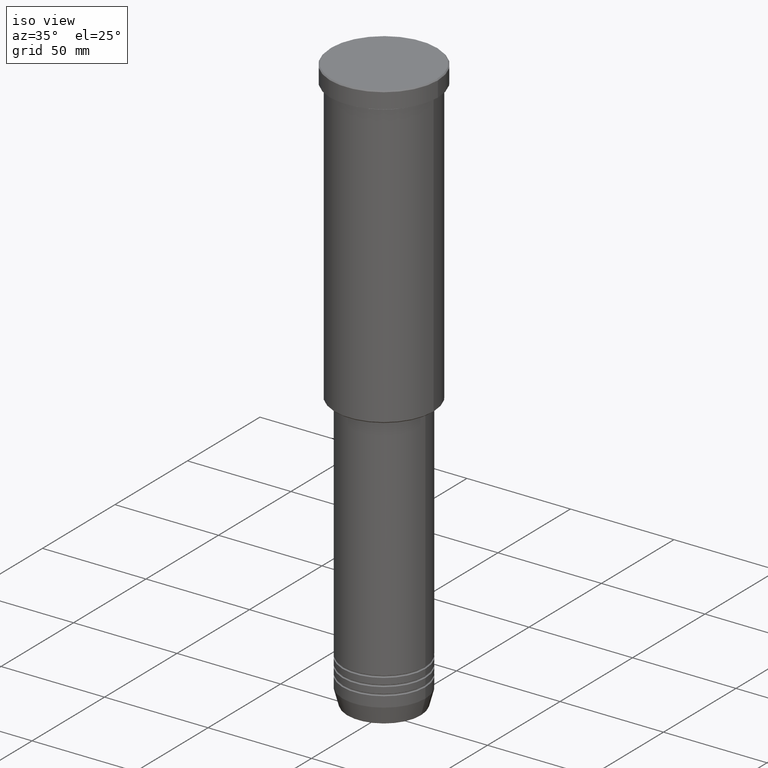
[diagram: clean part render]
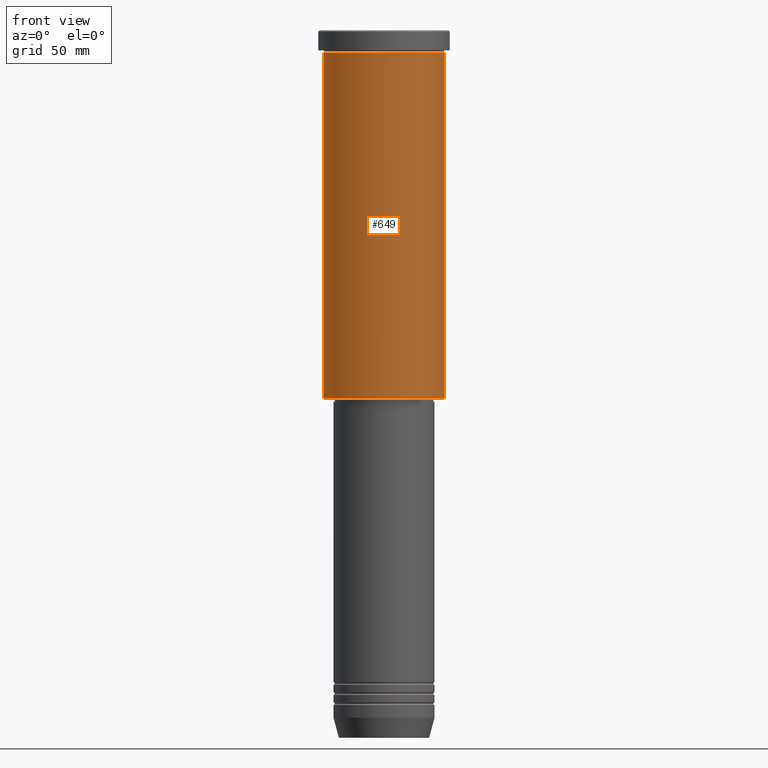
[diagram: tour spotlight — one face highlighted and labeled with its STEP entity id]
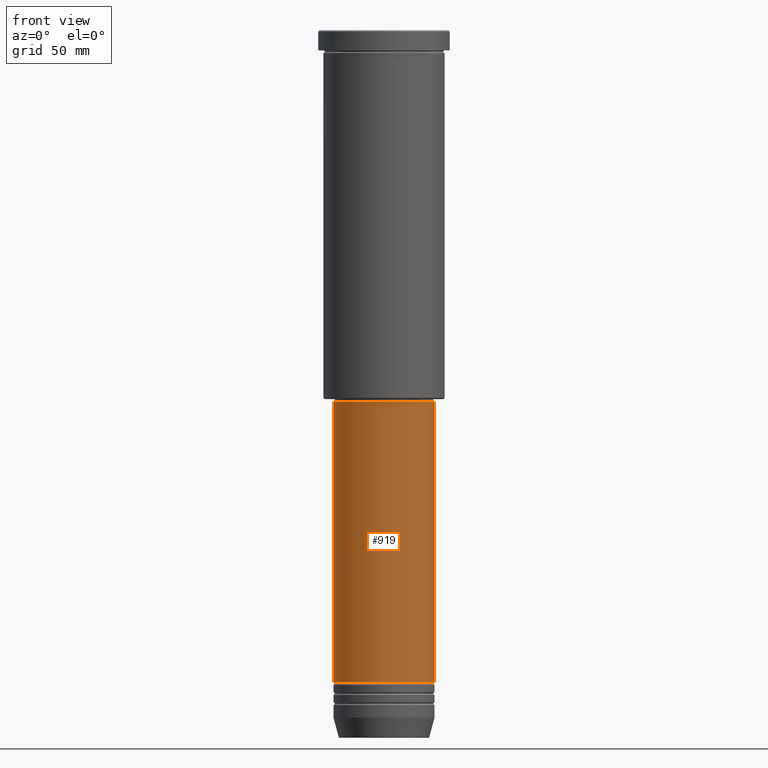
[diagram: tour spotlight — one face highlighted and labeled with its STEP entity id]
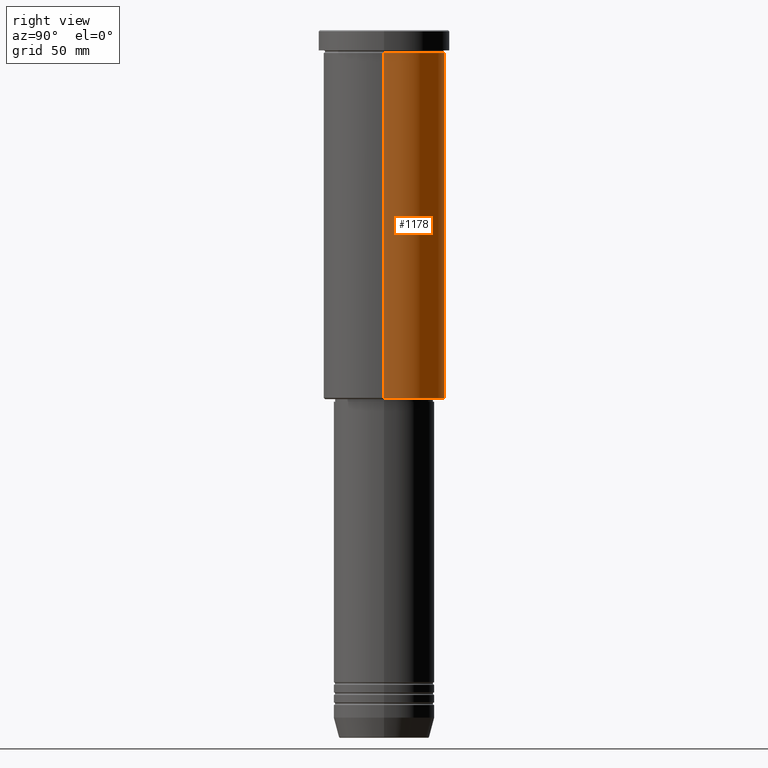
[diagram: tour spotlight — one face highlighted and labeled with its STEP entity id]
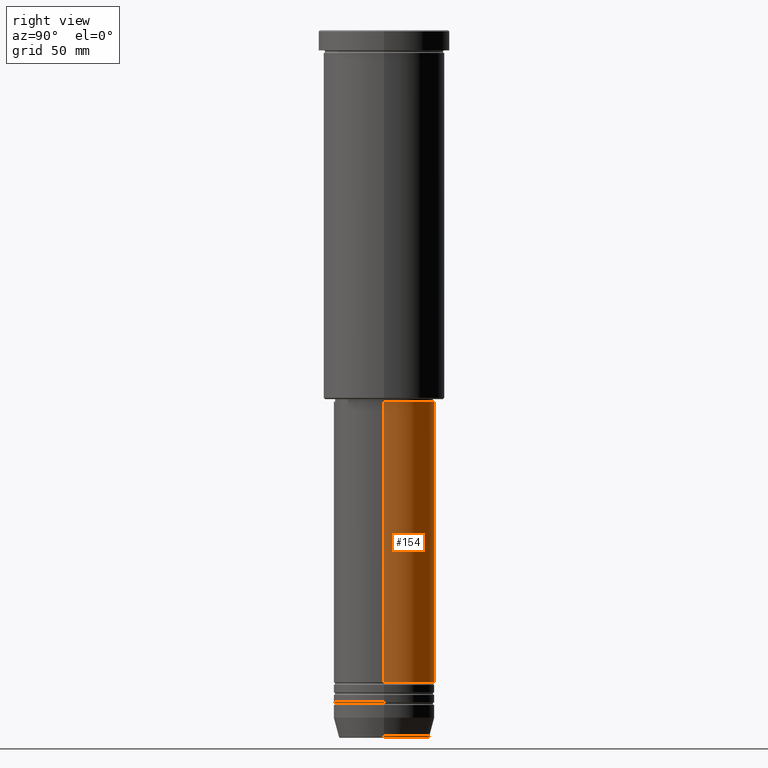
[diagram: tour spotlight — one face highlighted and labeled with its STEP entity id]
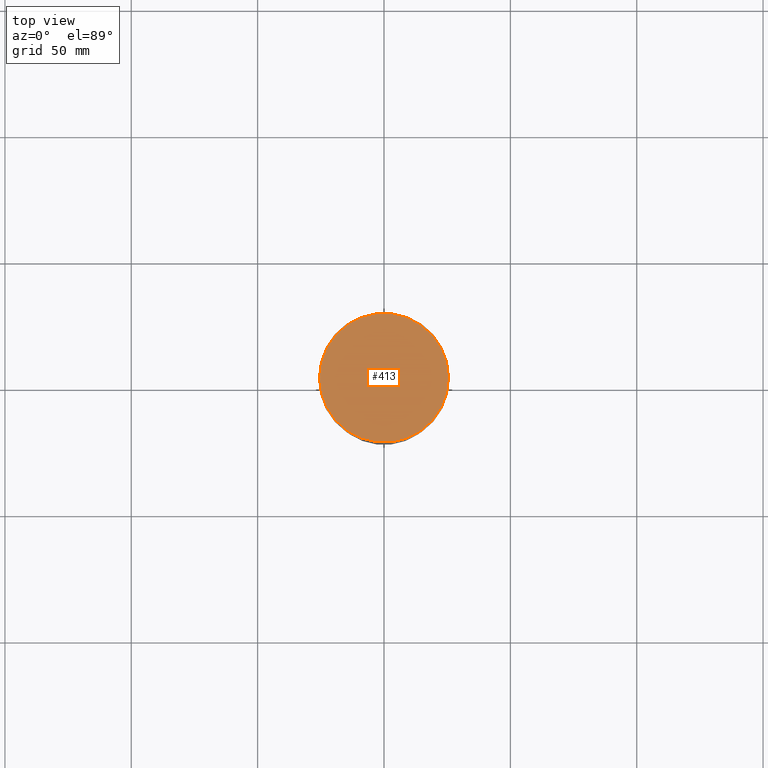
[diagram: tour spotlight — one face highlighted and labeled with its STEP entity id]
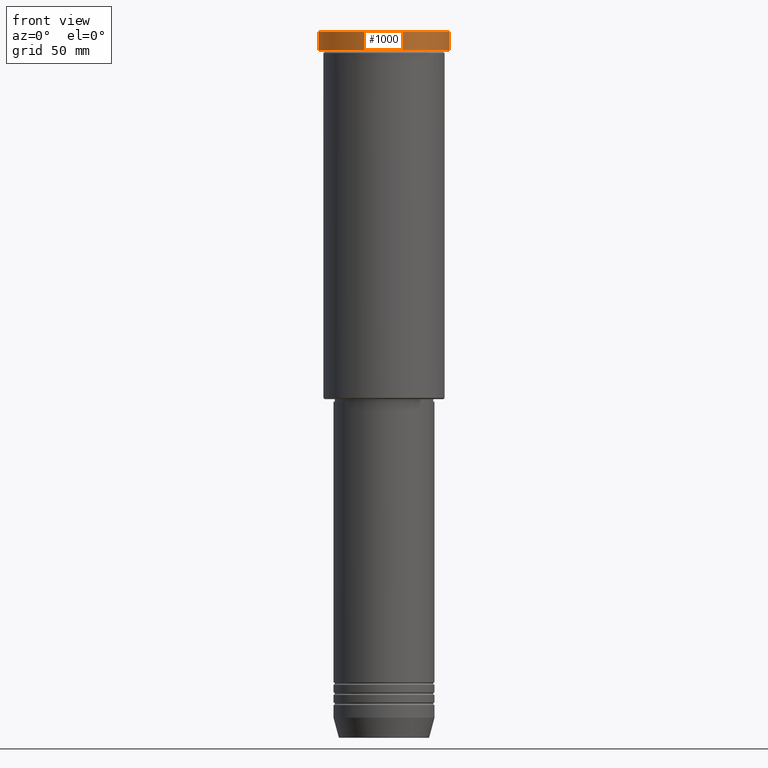
[diagram: tour spotlight — one face highlighted and labeled with its STEP entity id]
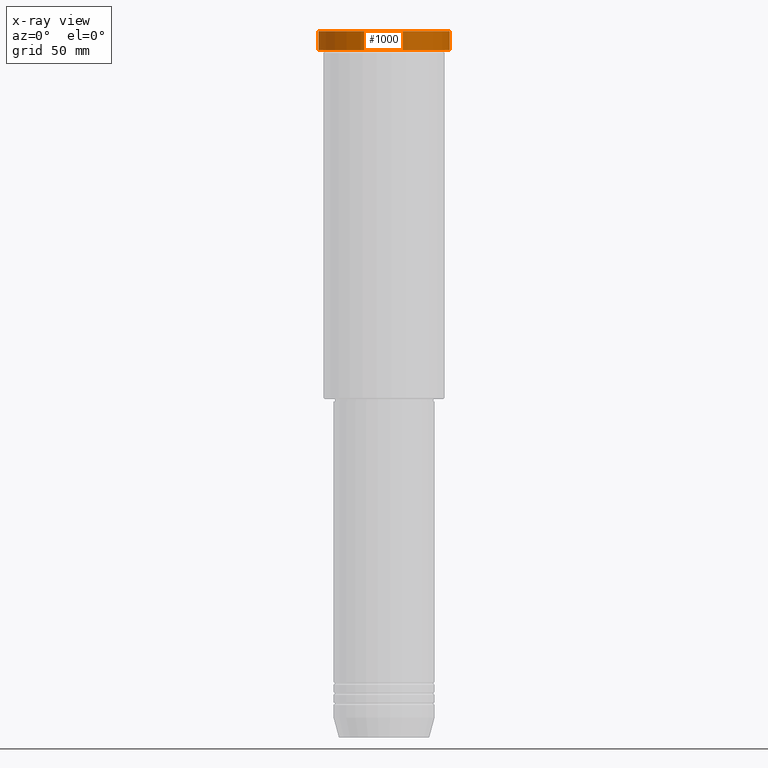
[diagram: x-ray of the same camera — body ghosted, this tour face saturated]
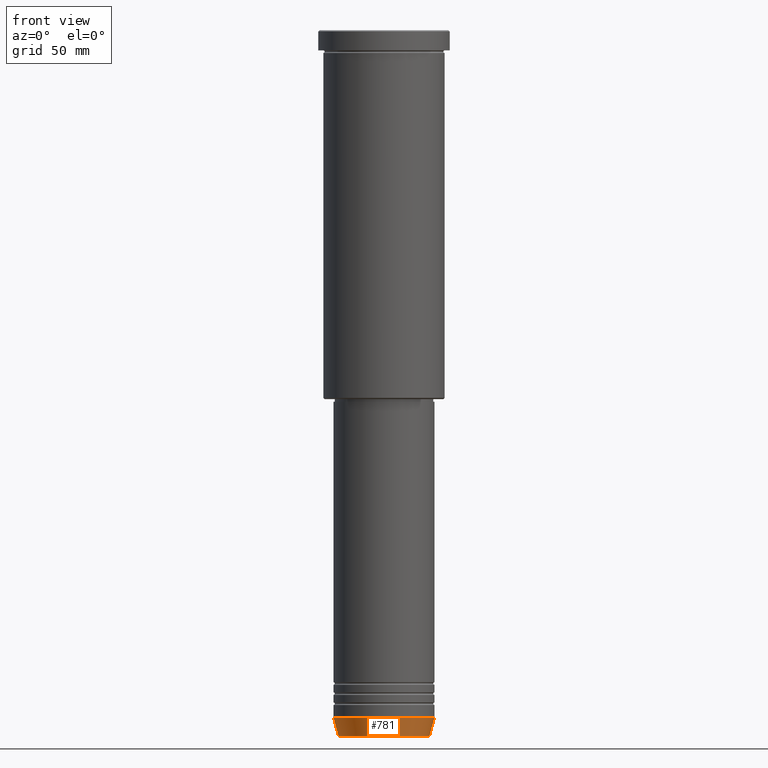
[diagram: tour spotlight — one face highlighted and labeled with its STEP entity id]
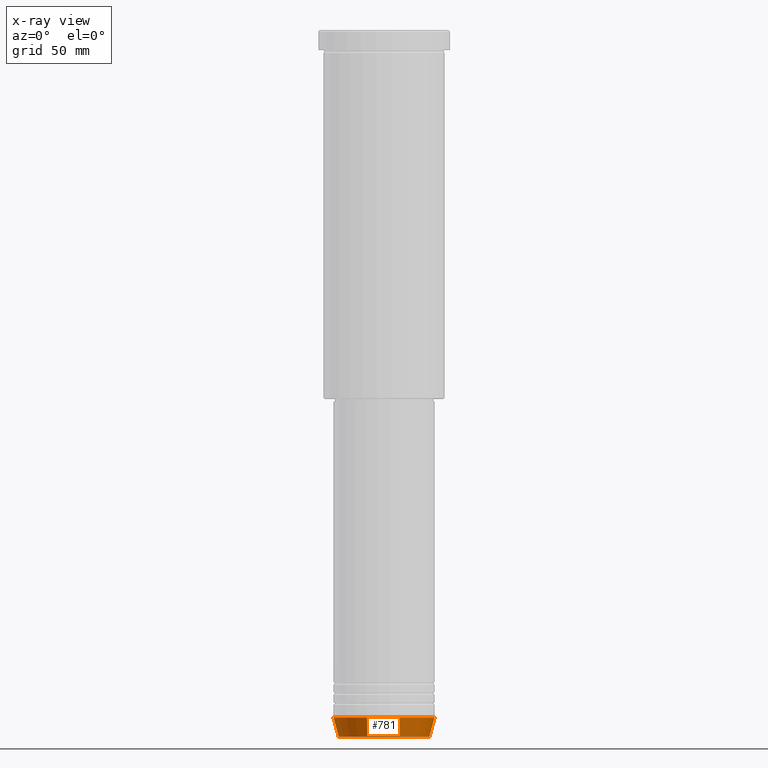
[diagram: x-ray of the same camera — body ghosted, this tour face saturated]
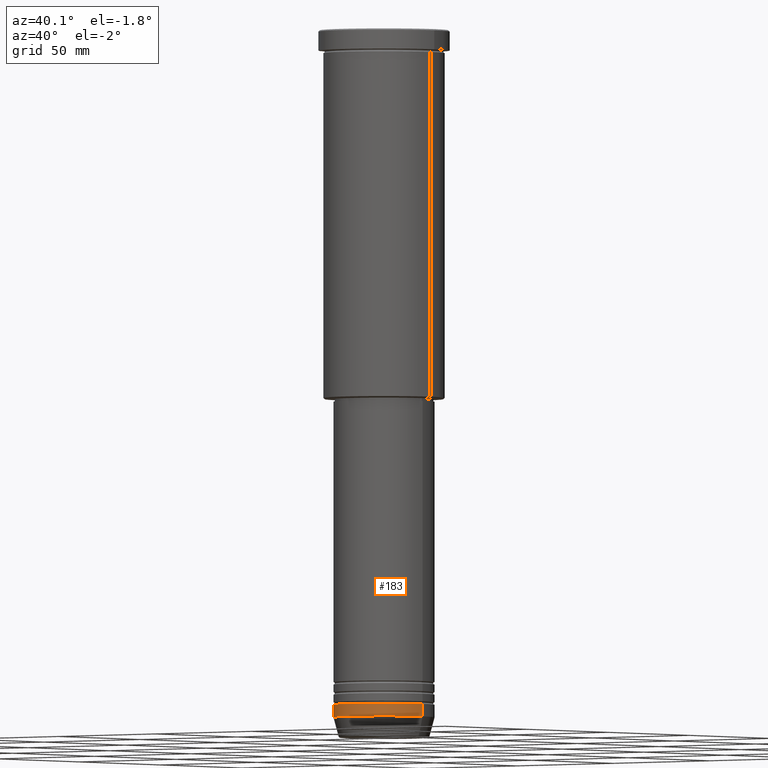
[diagram: tour spotlight — one face highlighted and labeled with its STEP entity id]
A machine part: a face-by-face anatomy tour. The part has 43 B-rep faces; the first image is the clean iso view, then the 8 largest visible faces are spotlighted one at a time (largest first), each with its STEP entity span.

Face 1 — front view, entity #649. In plain terms, the highlighted cylindrical surface (partial cylindrical patch) has radius 24 mm, axis along (-0, -0, 1).
Definition (entity closure, byte-faithful):
#77 = CARTESIAN_POINT ( 'NONE',  ( 0.000000000000000000, 0.000000000000000000, 0.000000000000000000 ) ) ;
#90 = FACE_OUTER_BOUND ( 'NONE', #387, .T. ) ;
#92 = AXIS2_PLACEMENT_3D ( 'NONE', #77, #926, #733 ) ;
#131 = AXIS2_PLACEMENT_3D ( 'NONE', #218, #597, #789 ) ;
#174 = AXIS2_PLACEMENT_3D ( 'NONE', #814, #360, #547 ) ;
#178 = CARTESIAN_POINT ( 'NONE',  ( -24.00000000000000000, 2.939152317953647894E-15, -145.4999999999999716 ) ) ;
#207 = EDGE_CURVE ( 'NONE', #635, #939, #1119, .T. ) ;
#218 = CARTESIAN_POINT ( 'NONE',  ( 0.000000000000000000, 0.000000000000000000, -145.4999999999999716 ) ) ;
#253 = CARTESIAN_POINT ( 'NONE',  ( 24.00000000000000000, 0.000000000000000000, -8.999999999999994671 ) ) ;
#296 = ORIENTED_EDGE ( 'NONE', *, *, #582, .F. ) ;
#312 = VERTEX_POINT ( 'NONE', #253 ) ;
#352 = ORIENTED_EDGE ( 'NONE', *, *, #625, .T. ) ;
#360 = DIRECTION ( 'NONE',  ( -0.000000000000000000, -0.000000000000000000, 1.000000000000000000 ) ) ;
#387 = EDGE_LOOP ( 'NONE', ( #1071, #1086, #352, #296 ) ) ;
#411 = CIRCLE ( 'NONE', #174, 24.00000000000000000 ) ;
#547 = DIRECTION ( 'NONE',  ( 1.000000000000000000, 0.000000000000000000, 0.000000000000000000 ) ) ;
#560 = CYLINDRICAL_SURFACE ( 'NONE', #92, 24.00000000000000000 ) ;
#582 = EDGE_CURVE ( 'NONE', #939, #312, #411, .T. ) ;
#597 = DIRECTION ( 'NONE',  ( -0.000000000000000000, -0.000000000000000000, 1.000000000000000000 ) ) ;
#625 = EDGE_CURVE ( 'NONE', #634, #312, #728, .T. ) ;
#634 = VERTEX_POINT ( 'NONE', #835 ) ;
#635 = VERTEX_POINT ( 'NONE', #178 ) ;
#649 = ADVANCED_FACE ( 'NONE', ( #90 ), #560, .T. ) ;
#728 = LINE ( 'NONE', #1004, #1049 ) ;
#733 = DIRECTION ( 'NONE',  ( 1.000000000000000000, 0.000000000000000000, 0.000000000000000000 ) ) ;
#789 = DIRECTION ( 'NONE',  ( -1.000000000000000000, 0.000000000000000000, 0.000000000000000000 ) ) ;
#814 = CARTESIAN_POINT ( 'NONE',  ( 0.000000000000000000, 0.000000000000000000, -8.999999999999994671 ) ) ;
#835 = CARTESIAN_POINT ( 'NONE',  ( 24.00000000000000000, 0.000000000000000000, -145.4999999999999716 ) ) ;
#863 = DIRECTION ( 'NONE',  ( -0.000000000000000000, -0.000000000000000000, 1.000000000000000000 ) ) ;
#926 = DIRECTION ( 'NONE',  ( -0.000000000000000000, -0.000000000000000000, 1.000000000000000000 ) ) ;
#939 = VERTEX_POINT ( 'NONE', #981 ) ;
#950 = CARTESIAN_POINT ( 'NONE',  ( -24.00000000000000000, 2.939152317953647894E-15, 0.000000000000000000 ) ) ;
#973 = EDGE_CURVE ( 'NONE', #635, #634, #1087, .T. ) ;
#981 = CARTESIAN_POINT ( 'NONE',  ( -24.00000000000000000, 2.939152317953647894E-15, -8.999999999999994671 ) ) ;
#1004 = CARTESIAN_POINT ( 'NONE',  ( 24.00000000000000000, 0.000000000000000000, 0.000000000000000000 ) ) ;
#1049 = VECTOR ( 'NONE', #1107, 1000.000000000000000 ) ;
#1071 = ORIENTED_EDGE ( 'NONE', *, *, #207, .F. ) ;
#1086 = ORIENTED_EDGE ( 'NONE', *, *, #973, .T. ) ;
#1087 = CIRCLE ( 'NONE', #131, 24.00000000000000000 ) ;
#1107 = DIRECTION ( 'NONE',  ( -0.000000000000000000, -0.000000000000000000, 1.000000000000000000 ) ) ;
#1119 = LINE ( 'NONE', #950, #1154 ) ;
#1154 = VECTOR ( 'NONE', #863, 1000.000000000000000 ) ;

Face 2 — front view, entity #919. In plain terms, the highlighted cylindrical surface (partial cylindrical patch) has radius 20 mm, axis along (-0, -0, 1).
Definition (entity closure, byte-faithful):
#16 = VERTEX_POINT ( 'NONE', #624 ) ;
#36 = AXIS2_PLACEMENT_3D ( 'NONE', #583, #406, #309 ) ;
#99 = DIRECTION ( 'NONE',  ( -0.000000000000000000, -0.000000000000000000, 1.000000000000000000 ) ) ;
#145 = EDGE_CURVE ( 'NONE', #510, #16, #1103, .T. ) ;
#151 = CIRCLE ( 'NONE', #575, 20.00000000000000355 ) ;
#234 = CARTESIAN_POINT ( 'NONE',  ( -20.00000000000000355, 2.449293598294706907E-15, -258.0000000000000000 ) ) ;
#243 = CARTESIAN_POINT ( 'NONE',  ( 20.00000000000000355, 0.000000000000000000, -258.0000000000000000 ) ) ;
#255 = ORIENTED_EDGE ( 'NONE', *, *, #145, .T. ) ;
#258 = DIRECTION ( 'NONE',  ( -0.000000000000000000, -0.000000000000000000, 1.000000000000000000 ) ) ;
#294 = ORIENTED_EDGE ( 'NONE', *, *, #767, .T. ) ;
#309 = DIRECTION ( 'NONE',  ( 1.000000000000000000, 0.000000000000000000, 0.000000000000000000 ) ) ;
#337 = CARTESIAN_POINT ( 'NONE',  ( 0.000000000000000000, 0.000000000000000000, 0.000000000000000000 ) ) ;
#406 = DIRECTION ( 'NONE',  ( -0.000000000000000000, -0.000000000000000000, 1.000000000000000000 ) ) ;
#438 = FACE_OUTER_BOUND ( 'NONE', #521, .T. ) ;
#490 = DIRECTION ( 'NONE',  ( -0.000000000000000000, -0.000000000000000000, 1.000000000000000000 ) ) ;
#510 = VERTEX_POINT ( 'NONE', #243 ) ;
#511 = DIRECTION ( 'NONE',  ( -0.000000000000000000, -0.000000000000000000, 1.000000000000000000 ) ) ;
#521 = EDGE_LOOP ( 'NONE', ( #690, #294, #255, #606 ) ) ;
#552 = EDGE_CURVE ( 'NONE', #947, #620, #1075, .T. ) ;
#564 = VECTOR ( 'NONE', #258, 1000.000000000000000 ) ;
#573 = EDGE_CURVE ( 'NONE', #620, #16, #151, .T. ) ;
#575 = AXIS2_PLACEMENT_3D ( 'NONE', #1091, #99, #920 ) ;
#583 = CARTESIAN_POINT ( 'NONE',  ( 0.000000000000000000, 0.000000000000000000, -258.0000000000000000 ) ) ;
#584 = AXIS2_PLACEMENT_3D ( 'NONE', #337, #511, #962 ) ;
#600 = CARTESIAN_POINT ( 'NONE',  ( -20.00000000000000355, 2.449293598294706907E-15, 0.000000000000000000 ) ) ;
#606 = ORIENTED_EDGE ( 'NONE', *, *, #573, .F. ) ;
#620 = VERTEX_POINT ( 'NONE', #739 ) ;
#624 = CARTESIAN_POINT ( 'NONE',  ( 20.00000000000000355, 0.000000000000000000, -147.0000000000000000 ) ) ;
#690 = ORIENTED_EDGE ( 'NONE', *, *, #552, .F. ) ;
#739 = CARTESIAN_POINT ( 'NONE',  ( -20.00000000000000355, 2.449293598294706907E-15, -147.0000000000000000 ) ) ;
#767 = EDGE_CURVE ( 'NONE', #947, #510, #897, .T. ) ;
#886 = CYLINDRICAL_SURFACE ( 'NONE', #584, 20.00000000000000355 ) ;
#897 = CIRCLE ( 'NONE', #36, 20.00000000000000355 ) ;
#919 = ADVANCED_FACE ( 'NONE', ( #438 ), #886, .T. ) ;
#920 = DIRECTION ( 'NONE',  ( 1.000000000000000000, 0.000000000000000000, 0.000000000000000000 ) ) ;
#947 = VERTEX_POINT ( 'NONE', #234 ) ;
#962 = DIRECTION ( 'NONE',  ( 1.000000000000000000, 0.000000000000000000, 0.000000000000000000 ) ) ;
#1005 = CARTESIAN_POINT ( 'NONE',  ( 20.00000000000000355, 0.000000000000000000, 0.000000000000000000 ) ) ;
#1066 = VECTOR ( 'NONE', #490, 1000.000000000000000 ) ;
#1075 = LINE ( 'NONE', #600, #564 ) ;
#1091 = CARTESIAN_POINT ( 'NONE',  ( 0.000000000000000000, 0.000000000000000000, -147.0000000000000000 ) ) ;
#1103 = LINE ( 'NONE', #1005, #1066 ) ;

Face 3 — right view, entity #1178. In plain terms, the highlighted cylindrical surface (partial cylindrical patch) has radius 24 mm, axis along (-0, -0, 1).
Definition (entity closure, byte-faithful):
#42 = ORIENTED_EDGE ( 'NONE', *, *, #207, .T. ) ;
#46 = DIRECTION ( 'NONE',  ( -1.000000000000000000, 0.000000000000000000, 0.000000000000000000 ) ) ;
#107 = DIRECTION ( 'NONE',  ( -0.000000000000000000, -0.000000000000000000, 1.000000000000000000 ) ) ;
#108 = CIRCLE ( 'NONE', #513, 24.00000000000000000 ) ;
#119 = FACE_OUTER_BOUND ( 'NONE', #370, .T. ) ;
#178 = CARTESIAN_POINT ( 'NONE',  ( -24.00000000000000000, 2.939152317953647894E-15, -145.4999999999999716 ) ) ;
#197 = CARTESIAN_POINT ( 'NONE',  ( 0.000000000000000000, 0.000000000000000000, 0.000000000000000000 ) ) ;
#199 = DIRECTION ( 'NONE',  ( 1.000000000000000000, 0.000000000000000000, 0.000000000000000000 ) ) ;
#207 = EDGE_CURVE ( 'NONE', #635, #939, #1119, .T. ) ;
#225 = ORIENTED_EDGE ( 'NONE', *, *, #410, .T. ) ;
#242 = AXIS2_PLACEMENT_3D ( 'NONE', #486, #663, #199 ) ;
#253 = CARTESIAN_POINT ( 'NONE',  ( 24.00000000000000000, 0.000000000000000000, -8.999999999999994671 ) ) ;
#312 = VERTEX_POINT ( 'NONE', #253 ) ;
#326 = DIRECTION ( 'NONE',  ( -0.000000000000000000, -0.000000000000000000, 1.000000000000000000 ) ) ;
#370 = EDGE_LOOP ( 'NONE', ( #225, #42, #1077, #806 ) ) ;
#396 = CYLINDRICAL_SURFACE ( 'NONE', #671, 24.00000000000000000 ) ;
#410 = EDGE_CURVE ( 'NONE', #634, #635, #108, .T. ) ;
#486 = CARTESIAN_POINT ( 'NONE',  ( 0.000000000000000000, 0.000000000000000000, -8.999999999999994671 ) ) ;
#513 = AXIS2_PLACEMENT_3D ( 'NONE', #976, #326, #46 ) ;
#625 = EDGE_CURVE ( 'NONE', #634, #312, #728, .T. ) ;
#634 = VERTEX_POINT ( 'NONE', #835 ) ;
#635 = VERTEX_POINT ( 'NONE', #178 ) ;
#663 = DIRECTION ( 'NONE',  ( -0.000000000000000000, -0.000000000000000000, 1.000000000000000000 ) ) ;
#671 = AXIS2_PLACEMENT_3D ( 'NONE', #197, #107, #676 ) ;
#676 = DIRECTION ( 'NONE',  ( 1.000000000000000000, 0.000000000000000000, 0.000000000000000000 ) ) ;
#728 = LINE ( 'NONE', #1004, #1049 ) ;
#729 = EDGE_CURVE ( 'NONE', #312, #939, #778, .T. ) ;
#778 = CIRCLE ( 'NONE', #242, 24.00000000000000000 ) ;
#806 = ORIENTED_EDGE ( 'NONE', *, *, #625, .F. ) ;
#835 = CARTESIAN_POINT ( 'NONE',  ( 24.00000000000000000, 0.000000000000000000, -145.4999999999999716 ) ) ;
#863 = DIRECTION ( 'NONE',  ( -0.000000000000000000, -0.000000000000000000, 1.000000000000000000 ) ) ;
#939 = VERTEX_POINT ( 'NONE', #981 ) ;
#950 = CARTESIAN_POINT ( 'NONE',  ( -24.00000000000000000, 2.939152317953647894E-15, 0.000000000000000000 ) ) ;
#976 = CARTESIAN_POINT ( 'NONE',  ( 0.000000000000000000, 0.000000000000000000, -145.4999999999999716 ) ) ;
#981 = CARTESIAN_POINT ( 'NONE',  ( -24.00000000000000000, 2.939152317953647894E-15, -8.999999999999994671 ) ) ;
#1004 = CARTESIAN_POINT ( 'NONE',  ( 24.00000000000000000, 0.000000000000000000, 0.000000000000000000 ) ) ;
#1049 = VECTOR ( 'NONE', #1107, 1000.000000000000000 ) ;
#1077 = ORIENTED_EDGE ( 'NONE', *, *, #729, .F. ) ;
#1107 = DIRECTION ( 'NONE',  ( -0.000000000000000000, -0.000000000000000000, 1.000000000000000000 ) ) ;
#1119 = LINE ( 'NONE', #950, #1154 ) ;
#1154 = VECTOR ( 'NONE', #863, 1000.000000000000000 ) ;
#1178 = ADVANCED_FACE ( 'NONE', ( #119 ), #396, .T. ) ;

Face 4 — right view, entity #154. In plain terms, the highlighted cylindrical surface (partial cylindrical patch) has radius 20 mm, axis along (-0, -0, 1).
Definition (entity closure, byte-faithful):
#16 = VERTEX_POINT ( 'NONE', #624 ) ;
#55 = AXIS2_PLACEMENT_3D ( 'NONE', #499, #327, #318 ) ;
#65 = ORIENTED_EDGE ( 'NONE', *, *, #552, .T. ) ;
#88 = CARTESIAN_POINT ( 'NONE',  ( 0.000000000000000000, 0.000000000000000000, -258.0000000000000000 ) ) ;
#145 = EDGE_CURVE ( 'NONE', #510, #16, #1103, .T. ) ;
#146 = CIRCLE ( 'NONE', #1030, 20.00000000000000355 ) ;
#154 = ADVANCED_FACE ( 'NONE', ( #1153 ), #705, .T. ) ;
#234 = CARTESIAN_POINT ( 'NONE',  ( -20.00000000000000355, 2.449293598294706907E-15, -258.0000000000000000 ) ) ;
#243 = CARTESIAN_POINT ( 'NONE',  ( 20.00000000000000355, 0.000000000000000000, -258.0000000000000000 ) ) ;
#258 = DIRECTION ( 'NONE',  ( -0.000000000000000000, -0.000000000000000000, 1.000000000000000000 ) ) ;
#318 = DIRECTION ( 'NONE',  ( 1.000000000000000000, 0.000000000000000000, 0.000000000000000000 ) ) ;
#327 = DIRECTION ( 'NONE',  ( -0.000000000000000000, -0.000000000000000000, 1.000000000000000000 ) ) ;
#439 = ORIENTED_EDGE ( 'NONE', *, *, #145, .F. ) ;
#490 = DIRECTION ( 'NONE',  ( -0.000000000000000000, -0.000000000000000000, 1.000000000000000000 ) ) ;
#499 = CARTESIAN_POINT ( 'NONE',  ( 0.000000000000000000, 0.000000000000000000, 0.000000000000000000 ) ) ;
#510 = VERTEX_POINT ( 'NONE', #243 ) ;
#552 = EDGE_CURVE ( 'NONE', #947, #620, #1075, .T. ) ;
#564 = VECTOR ( 'NONE', #258, 1000.000000000000000 ) ;
#587 = AXIS2_PLACEMENT_3D ( 'NONE', #88, #1079, #1002 ) ;
#600 = CARTESIAN_POINT ( 'NONE',  ( -20.00000000000000355, 2.449293598294706907E-15, 0.000000000000000000 ) ) ;
#620 = VERTEX_POINT ( 'NONE', #739 ) ;
#624 = CARTESIAN_POINT ( 'NONE',  ( 20.00000000000000355, 0.000000000000000000, -147.0000000000000000 ) ) ;
#666 = ORIENTED_EDGE ( 'NONE', *, *, #773, .F. ) ;
#705 = CYLINDRICAL_SURFACE ( 'NONE', #55, 20.00000000000000355 ) ;
#739 = CARTESIAN_POINT ( 'NONE',  ( -20.00000000000000355, 2.449293598294706907E-15, -147.0000000000000000 ) ) ;
#773 = EDGE_CURVE ( 'NONE', #16, #620, #146, .T. ) ;
#866 = EDGE_LOOP ( 'NONE', ( #881, #65, #666, #439 ) ) ;
#881 = ORIENTED_EDGE ( 'NONE', *, *, #1108, .T. ) ;
#941 = DIRECTION ( 'NONE',  ( -0.000000000000000000, -0.000000000000000000, 1.000000000000000000 ) ) ;
#947 = VERTEX_POINT ( 'NONE', #234 ) ;
#951 = DIRECTION ( 'NONE',  ( 1.000000000000000000, 0.000000000000000000, 0.000000000000000000 ) ) ;
#955 = CIRCLE ( 'NONE', #587, 20.00000000000000355 ) ;
#1002 = DIRECTION ( 'NONE',  ( 1.000000000000000000, 0.000000000000000000, 0.000000000000000000 ) ) ;
#1005 = CARTESIAN_POINT ( 'NONE',  ( 20.00000000000000355, 0.000000000000000000, 0.000000000000000000 ) ) ;
#1030 = AXIS2_PLACEMENT_3D ( 'NONE', #1132, #941, #951 ) ;
#1066 = VECTOR ( 'NONE', #490, 1000.000000000000000 ) ;
#1075 = LINE ( 'NONE', #600, #564 ) ;
#1079 = DIRECTION ( 'NONE',  ( -0.000000000000000000, -0.000000000000000000, 1.000000000000000000 ) ) ;
#1103 = LINE ( 'NONE', #1005, #1066 ) ;
#1108 = EDGE_CURVE ( 'NONE', #510, #947, #955, .T. ) ;
#1132 = CARTESIAN_POINT ( 'NONE',  ( 0.000000000000000000, 0.000000000000000000, -147.0000000000000000 ) ) ;
#1153 = FACE_OUTER_BOUND ( 'NONE', #866, .T. ) ;

Face 5 — top view, entity #413. In plain terms, the highlighted planar face has unit normal (0, -0, 1).
Definition (entity closure, byte-faithful):
#64 = CARTESIAN_POINT ( 'NONE',  ( 25.49999999999994316, 3.153465507804430854E-15, 0.000000000000000000 ) ) ;
#79 = VERTEX_POINT ( 'NONE', #1063 ) ;
#158 = AXIS2_PLACEMENT_3D ( 'NONE', #522, #964, #867 ) ;
#367 = CIRCLE ( 'NONE', #602, 25.49999999999994316 ) ;
#389 = CIRCLE ( 'NONE', #568, 25.49999999999994316 ) ;
#403 = CARTESIAN_POINT ( 'NONE',  ( 0.000000000000000000, 0.000000000000000000, 0.000000000000000000 ) ) ;
#413 = ADVANCED_FACE ( 'NONE', ( #791 ), #1157, .T. ) ;
#459 = VERTEX_POINT ( 'NONE', #64 ) ;
#505 = DIRECTION ( 'NONE',  ( 1.000000000000000000, 0.000000000000000000, 0.000000000000000000 ) ) ;
#522 = CARTESIAN_POINT ( 'NONE',  ( 0.000000000000000000, 0.000000000000000000, 0.000000000000000000 ) ) ;
#568 = AXIS2_PLACEMENT_3D ( 'NONE', #1060, #604, #696 ) ;
#602 = AXIS2_PLACEMENT_3D ( 'NONE', #403, #757, #505 ) ;
#604 = DIRECTION ( 'NONE',  ( -0.000000000000000000, -0.000000000000000000, 1.000000000000000000 ) ) ;
#696 = DIRECTION ( 'NONE',  ( 1.000000000000000000, 0.000000000000000000, 0.000000000000000000 ) ) ;
#706 = EDGE_CURVE ( 'NONE', #79, #459, #367, .T. ) ;
#757 = DIRECTION ( 'NONE',  ( -0.000000000000000000, -0.000000000000000000, 1.000000000000000000 ) ) ;
#791 = FACE_OUTER_BOUND ( 'NONE', #1104, .T. ) ;
#792 = ORIENTED_EDGE ( 'NONE', *, *, #706, .T. ) ;
#861 = EDGE_CURVE ( 'NONE', #459, #79, #389, .T. ) ;
#867 = DIRECTION ( 'NONE',  ( 1.000000000000000000, 0.000000000000000000, 0.000000000000000000 ) ) ;
#964 = DIRECTION ( 'NONE',  ( 0.000000000000000000, -0.000000000000000000, 1.000000000000000000 ) ) ;
#983 = ORIENTED_EDGE ( 'NONE', *, *, #861, .T. ) ;
#1060 = CARTESIAN_POINT ( 'NONE',  ( 0.000000000000000000, 0.000000000000000000, 0.000000000000000000 ) ) ;
#1063 = CARTESIAN_POINT ( 'NONE',  ( -25.49999999999994316, 0.000000000000000000, 0.000000000000000000 ) ) ;
#1104 = EDGE_LOOP ( 'NONE', ( #792, #983 ) ) ;
#1157 = PLANE ( 'NONE',  #158 ) ;

Face 6 — front view, entity #1000. An x-ray twin of the same camera follows (body ghosted, this face saturated) — the face is partly hidden behind the body. In plain terms, the highlighted cylindrical surface (partial cylindrical patch) has radius 26 mm, axis along (-0, -0, 1).
Definition (entity closure, byte-faithful):
#93 = ORIENTED_EDGE ( 'NONE', *, *, #397, .F. ) ;
#117 = CARTESIAN_POINT ( 'NONE',  ( 26.00000000000000000, 0.000000000000000000, 0.000000000000000000 ) ) ;
#142 = VECTOR ( 'NONE', #147, 1000.000000000000000 ) ;
#147 = DIRECTION ( 'NONE',  ( -0.000000000000000000, -0.000000000000000000, 1.000000000000000000 ) ) ;
#198 = AXIS2_PLACEMENT_3D ( 'NONE', #369, #467, #825 ) ;
#205 = CARTESIAN_POINT ( 'NONE',  ( 26.00000000000000000, 0.000000000000000000, -7.999999999999992895 ) ) ;
#229 = VERTEX_POINT ( 'NONE', #772 ) ;
#231 = EDGE_CURVE ( 'NONE', #229, #735, #755, .T. ) ;
#239 = LINE ( 'NONE', #480, #142 ) ;
#259 = VERTEX_POINT ( 'NONE', #301 ) ;
#268 = AXIS2_PLACEMENT_3D ( 'NONE', #827, #907, #559 ) ;
#301 = CARTESIAN_POINT ( 'NONE',  ( 26.00000000000000000, 0.000000000000000000, -0.5000000000000525135 ) ) ;
#303 = DIRECTION ( 'NONE',  ( 0.000000000000000000, 0.000000000000000000, -1.000000000000000000 ) ) ;
#317 = EDGE_CURVE ( 'NONE', #735, #259, #565, .T. ) ;
#339 = VECTOR ( 'NONE', #1035, 1000.000000000000000 ) ;
#369 = CARTESIAN_POINT ( 'NONE',  ( 0.000000000000000000, 0.000000000000000000, -7.999999999999992895 ) ) ;
#397 = EDGE_CURVE ( 'NONE', #229, #544, #239, .T. ) ;
#467 = DIRECTION ( 'NONE',  ( -0.000000000000000000, -0.000000000000000000, 1.000000000000000000 ) ) ;
#480 = CARTESIAN_POINT ( 'NONE',  ( -26.00000000000000000, 3.184081677783118191E-15, 0.000000000000000000 ) ) ;
#488 = DIRECTION ( 'NONE',  ( 1.000000000000000000, 0.000000000000000000, 0.000000000000000000 ) ) ;
#537 = CARTESIAN_POINT ( 'NONE',  ( 0.000000000000000000, 0.000000000000000000, -0.5000000000000525135 ) ) ;
#544 = VERTEX_POINT ( 'NONE', #698 ) ;
#559 = DIRECTION ( 'NONE',  ( 1.000000000000000000, 0.000000000000000000, 0.000000000000000000 ) ) ;
#565 = LINE ( 'NONE', #117, #339 ) ;
#670 = CIRCLE ( 'NONE', #708, 26.00000000000000000 ) ;
#675 = EDGE_CURVE ( 'NONE', #259, #544, #670, .T. ) ;
#698 = CARTESIAN_POINT ( 'NONE',  ( -26.00000000000000000, 3.184081677783118191E-15, -0.5000000000000525135 ) ) ;
#708 = AXIS2_PLACEMENT_3D ( 'NONE', #537, #303, #488 ) ;
#735 = VERTEX_POINT ( 'NONE', #205 ) ;
#748 = ORIENTED_EDGE ( 'NONE', *, *, #675, .T. ) ;
#755 = CIRCLE ( 'NONE', #198, 26.00000000000000000 ) ;
#772 = CARTESIAN_POINT ( 'NONE',  ( -26.00000000000000000, 3.184081677783118191E-15, -7.999999999999992895 ) ) ;
#807 = EDGE_LOOP ( 'NONE', ( #93, #846, #1006, #748 ) ) ;
#808 = FACE_OUTER_BOUND ( 'NONE', #807, .T. ) ;
#825 = DIRECTION ( 'NONE',  ( 1.000000000000000000, 0.000000000000000000, 0.000000000000000000 ) ) ;
#827 = CARTESIAN_POINT ( 'NONE',  ( 0.000000000000000000, 0.000000000000000000, 0.000000000000000000 ) ) ;
#846 = ORIENTED_EDGE ( 'NONE', *, *, #231, .T. ) ;
#907 = DIRECTION ( 'NONE',  ( -0.000000000000000000, -0.000000000000000000, 1.000000000000000000 ) ) ;
#924 = CYLINDRICAL_SURFACE ( 'NONE', #268, 26.00000000000000000 ) ;
#1000 = ADVANCED_FACE ( 'NONE', ( #808 ), #924, .T. ) ;
#1006 = ORIENTED_EDGE ( 'NONE', *, *, #317, .T. ) ;
#1035 = DIRECTION ( 'NONE',  ( -0.000000000000000000, -0.000000000000000000, 1.000000000000000000 ) ) ;

Face 7 — front view, entity #781. An x-ray twin of the same camera follows (body ghosted, this face saturated) — the face is partly hidden behind the body. In plain terms, the highlighted conical surface has half-angle 15 deg.
Definition (entity closure, byte-faithful):
#39 = EDGE_LOOP ( 'NONE', ( #269, #118, #724, #646 ) ) ;
#50 = DIRECTION ( 'NONE',  ( -0.000000000000000000, -0.000000000000000000, 1.000000000000000000 ) ) ;
#118 = ORIENTED_EDGE ( 'NONE', *, *, #992, .T. ) ;
#144 = CARTESIAN_POINT ( 'NONE',  ( 0.000000000000000000, 0.000000000000000000, -272.0000000000000000 ) ) ;
#190 = EDGE_CURVE ( 'NONE', #1173, #616, #383, .T. ) ;
#256 = DIRECTION ( 'NONE',  ( 1.000000000000000000, 0.000000000000000000, 0.000000000000000000 ) ) ;
#266 = AXIS2_PLACEMENT_3D ( 'NONE', #144, #50, #1052 ) ;
#269 = ORIENTED_EDGE ( 'NONE', *, *, #437, .F. ) ;
#276 = DIRECTION ( 'NONE',  ( 0.2588190451025212391, 0.000000000000000000, 0.9659258262890680902 ) ) ;
#278 = DIRECTION ( 'NONE',  ( -0.000000000000000000, -0.000000000000000000, 1.000000000000000000 ) ) ;
#281 = CARTESIAN_POINT ( 'NONE',  ( 20.00000000000000355, 0.000000000000000000, -272.0000000000000000 ) ) ;
#368 = AXIS2_PLACEMENT_3D ( 'NONE', #1072, #278, #256 ) ;
#383 = LINE ( 'NONE', #659, #1183 ) ;
#398 = CARTESIAN_POINT ( 'NONE',  ( 0.000000000000000000, 0.000000000000000000, -272.0000000000000000 ) ) ;
#437 = EDGE_CURVE ( 'NONE', #974, #1074, #991, .T. ) ;
#492 = CARTESIAN_POINT ( 'NONE',  ( 17.95570587970608045, 0.000000000000000000, -279.6294095225512706 ) ) ;
#501 = AXIS2_PLACEMENT_3D ( 'NONE', #398, #754, #1120 ) ;
#541 = CARTESIAN_POINT ( 'NONE',  ( -20.00000000000000355, 2.449293598294706907E-15, -272.0000000000000000 ) ) ;
#616 = VERTEX_POINT ( 'NONE', #281 ) ;
#628 = CIRCLE ( 'NONE', #266, 20.00000000000000355 ) ;
#644 = VECTOR ( 'NONE', #1146, 1000.000000000000114 ) ;
#646 = ORIENTED_EDGE ( 'NONE', *, *, #944, .F. ) ;
#659 = CARTESIAN_POINT ( 'NONE',  ( 20.00000000000000355, 0.000000000000000000, -272.0000000000000000 ) ) ;
#724 = ORIENTED_EDGE ( 'NONE', *, *, #190, .T. ) ;
#754 = DIRECTION ( 'NONE',  ( -0.000000000000000000, -0.000000000000000000, 1.000000000000000000 ) ) ;
#781 = ADVANCED_FACE ( 'NONE', ( #849 ), #1016, .T. ) ;
#849 = FACE_OUTER_BOUND ( 'NONE', #39, .T. ) ;
#944 = EDGE_CURVE ( 'NONE', #1074, #616, #628, .T. ) ;
#968 = CARTESIAN_POINT ( 'NONE',  ( -17.95570587970608045, 2.324116685748021371E-15, -279.6294095225512706 ) ) ;
#974 = VERTEX_POINT ( 'NONE', #968 ) ;
#991 = LINE ( 'NONE', #1048, #644 ) ;
#992 = EDGE_CURVE ( 'NONE', #974, #1173, #1031, .T. ) ;
#1016 = CONICAL_SURFACE ( 'NONE', #501, 20.00000000000000355, 0.2617993877991499629 ) ;
#1031 = CIRCLE ( 'NONE', #368, 17.95570587970608045 ) ;
#1048 = CARTESIAN_POINT ( 'NONE',  ( -20.00000000000000355, 2.449293598294706907E-15, -272.0000000000000000 ) ) ;
#1052 = DIRECTION ( 'NONE',  ( 1.000000000000000000, 0.000000000000000000, 0.000000000000000000 ) ) ;
#1072 = CARTESIAN_POINT ( 'NONE',  ( 0.000000000000000000, 0.000000000000000000, -279.6294095225512706 ) ) ;
#1074 = VERTEX_POINT ( 'NONE', #541 ) ;
#1120 = DIRECTION ( 'NONE',  ( 1.000000000000000000, 0.000000000000000000, 0.000000000000000000 ) ) ;
#1146 = DIRECTION ( 'NONE',  ( -0.2588190451025212391, 3.169619151431771721E-17, 0.9659258262890680902 ) ) ;
#1173 = VERTEX_POINT ( 'NONE', #492 ) ;
#1183 = VECTOR ( 'NONE', #276, 1000.000000000000114 ) ;

Face 8 — auxiliary view, entity #183. In plain terms, the highlighted cylindrical surface (partial cylindrical patch) has radius 20 mm, axis along (-0, -0, 1).
Definition (entity closure, byte-faithful):
#5 = DIRECTION ( 'NONE',  ( -0.000000000000000000, -0.000000000000000000, 1.000000000000000000 ) ) ;
#38 = LINE ( 'NONE', #769, #722 ) ;
#50 = DIRECTION ( 'NONE',  ( -0.000000000000000000, -0.000000000000000000, 1.000000000000000000 ) ) ;
#73 = AXIS2_PLACEMENT_3D ( 'NONE', #674, #128, #1034 ) ;
#97 = ORIENTED_EDGE ( 'NONE', *, *, #944, .T. ) ;
#101 = DIRECTION ( 'NONE',  ( 1.000000000000000000, 0.000000000000000000, 0.000000000000000000 ) ) ;
#128 = DIRECTION ( 'NONE',  ( -0.000000000000000000, -0.000000000000000000, 1.000000000000000000 ) ) ;
#144 = CARTESIAN_POINT ( 'NONE',  ( 0.000000000000000000, 0.000000000000000000, -272.0000000000000000 ) ) ;
#183 = ADVANCED_FACE ( 'NONE', ( #770 ), #223, .T. ) ;
#223 = CYLINDRICAL_SURFACE ( 'NONE', #1032, 20.00000000000000355 ) ;
#251 = CARTESIAN_POINT ( 'NONE',  ( 20.00000000000000000, 0.000000000000000000, -267.0000000000000000 ) ) ;
#266 = AXIS2_PLACEMENT_3D ( 'NONE', #144, #50, #1052 ) ;
#281 = CARTESIAN_POINT ( 'NONE',  ( 20.00000000000000355, 0.000000000000000000, -272.0000000000000000 ) ) ;
#284 = ORIENTED_EDGE ( 'NONE', *, *, #359, .F. ) ;
#290 = VERTEX_POINT ( 'NONE', #1131 ) ;
#292 = CIRCLE ( 'NONE', #73, 20.00000000000000000 ) ;
#359 = EDGE_CURVE ( 'NONE', #1074, #290, #38, .T. ) ;
#378 = VERTEX_POINT ( 'NONE', #251 ) ;
#408 = DIRECTION ( 'NONE',  ( -0.000000000000000000, -0.000000000000000000, 1.000000000000000000 ) ) ;
#461 = CARTESIAN_POINT ( 'NONE',  ( 0.000000000000000000, 0.000000000000000000, 0.000000000000000000 ) ) ;
#525 = ORIENTED_EDGE ( 'NONE', *, *, #1008, .T. ) ;
#534 = DIRECTION ( 'NONE',  ( -0.000000000000000000, -0.000000000000000000, 1.000000000000000000 ) ) ;
#541 = CARTESIAN_POINT ( 'NONE',  ( -20.00000000000000355, 2.449293598294706907E-15, -272.0000000000000000 ) ) ;
#550 = ORIENTED_EDGE ( 'NONE', *, *, #786, .F. ) ;
#616 = VERTEX_POINT ( 'NONE', #281 ) ;
#628 = CIRCLE ( 'NONE', #266, 20.00000000000000355 ) ;
#674 = CARTESIAN_POINT ( 'NONE',  ( 0.000000000000000000, 0.000000000000000000, -267.0000000000000000 ) ) ;
#722 = VECTOR ( 'NONE', #408, 1000.000000000000000 ) ;
#769 = CARTESIAN_POINT ( 'NONE',  ( -20.00000000000000355, 2.449293598294706907E-15, 0.000000000000000000 ) ) ;
#770 = FACE_OUTER_BOUND ( 'NONE', #872, .T. ) ;
#786 = EDGE_CURVE ( 'NONE', #290, #378, #292, .T. ) ;
#802 = VECTOR ( 'NONE', #534, 1000.000000000000000 ) ;
#872 = EDGE_LOOP ( 'NONE', ( #284, #97, #525, #550 ) ) ;
#901 = CARTESIAN_POINT ( 'NONE',  ( 20.00000000000000355, 0.000000000000000000, 0.000000000000000000 ) ) ;
#944 = EDGE_CURVE ( 'NONE', #1074, #616, #628, .T. ) ;
#1007 = LINE ( 'NONE', #901, #802 ) ;
#1008 = EDGE_CURVE ( 'NONE', #616, #378, #1007, .T. ) ;
#1032 = AXIS2_PLACEMENT_3D ( 'NONE', #461, #5, #101 ) ;
#1034 = DIRECTION ( 'NONE',  ( 1.000000000000000000, 0.000000000000000000, 0.000000000000000000 ) ) ;
#1052 = DIRECTION ( 'NONE',  ( 1.000000000000000000, 0.000000000000000000, 0.000000000000000000 ) ) ;
#1074 = VERTEX_POINT ( 'NONE', #541 ) ;
#1131 = CARTESIAN_POINT ( 'NONE',  ( -20.00000000000000000, 2.449293598294706513E-15, -267.0000000000000000 ) ) ;